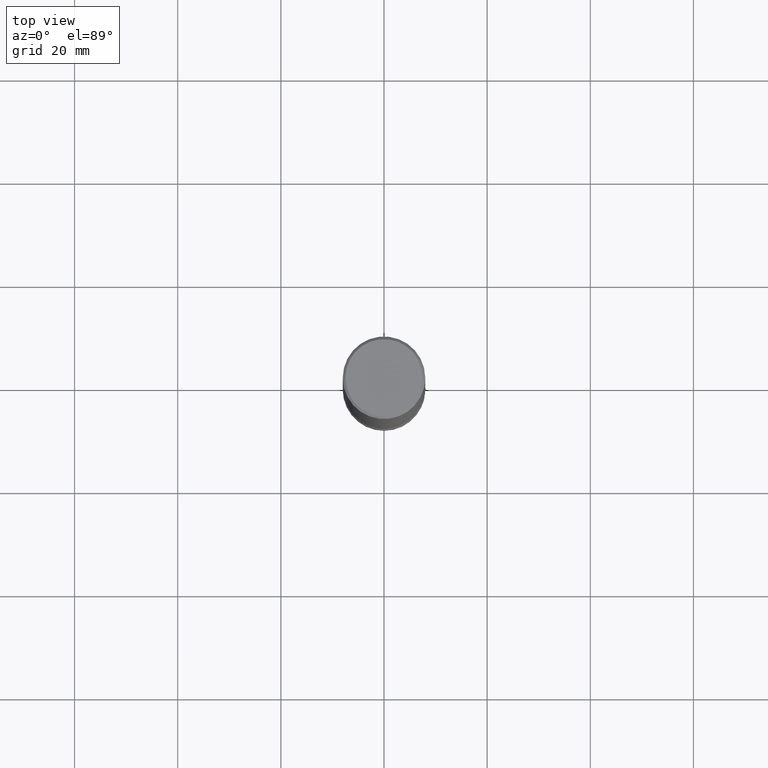
[diagram: clean part render]
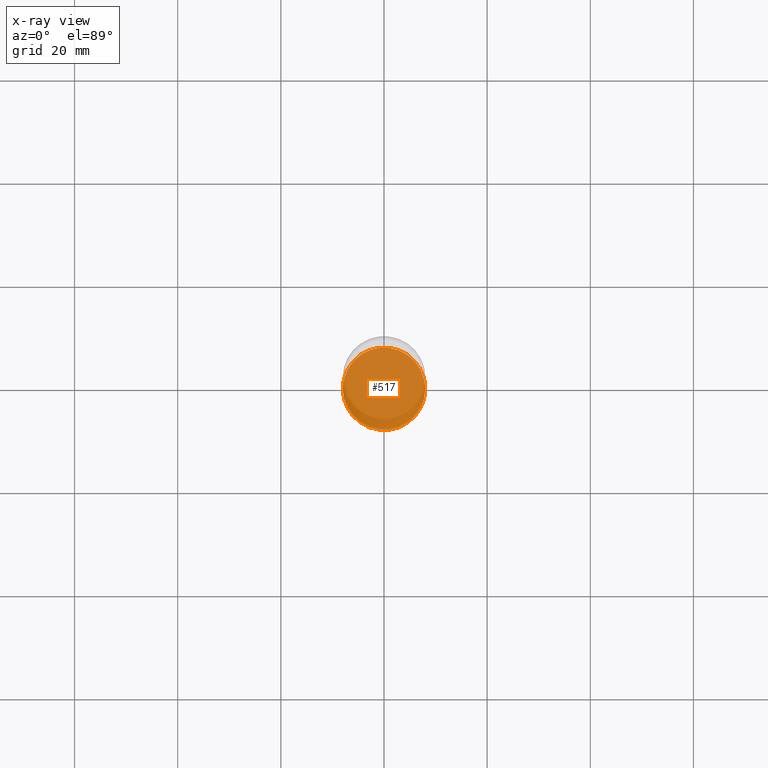
[diagram: x-ray — body ghosted, one internal face saturated and labeled with its STEP entity id]
A machine part, top view, then the same camera in x-ray: the body is ghosted and one INTERNAL B-rep face — a face not visible from any outside direction — is saturated and labeled: STEP entity #517.
In plain terms, the highlighted planar face has unit normal (0, -0, -1).
Its self-contained STEP definition (entity closure, byte-faithful):
#11 = DIRECTION ( 'NONE',  ( 2.445468806185136597E-29, -3.491481338843145583E-15, -1.000000000000000000 ) ) ;
#26 = ORIENTED_EDGE ( 'NONE', *, *, #507, .T. ) ;
#31 = CIRCLE ( 'NONE', #222, 0.3144499999999991746 ) ;
#33 = ORIENTED_EDGE ( 'NONE', *, *, #414, .T. ) ;
#104 = CIRCLE ( 'NONE', #396, 0.3144499999999991746 ) ;
#138 = DIRECTION ( 'NONE',  ( -1.000000000000000000, 6.982962677686264344E-15, 0.000000000000000000 ) ) ;
#139 = AXIS2_PLACEMENT_3D ( 'NONE', #398, #276, #319 ) ;
#163 = CARTESIAN_POINT ( 'NONE',  ( 0.3144499999999991746, -1.924149724620079113E-14, -4.881899999999999906 ) ) ;
#169 = VERTEX_POINT ( 'NONE', #163 ) ;
#191 = EDGE_LOOP ( 'NONE', ( #26, #33 ) ) ;
#222 = AXIS2_PLACEMENT_3D ( 'NONE', #228, #11, #402 ) ;
#228 = CARTESIAN_POINT ( 'NONE',  ( 1.193853416491521798E-28, -1.704506274809835102E-14, -4.881899999999999906 ) ) ;
#267 = FACE_OUTER_BOUND ( 'NONE', #191, .T. ) ;
#273 = CARTESIAN_POINT ( 'NONE',  ( -0.3144499999999991746, -1.480881294892509457E-14, -4.881899999999999906 ) ) ;
#276 = DIRECTION ( 'NONE',  ( 2.438088387897960049E-29, -3.491481338843145188E-15, -1.000000000000000000 ) ) ;
#319 = DIRECTION ( 'NONE',  ( -1.000000000000000000, 6.982962677686265922E-15, -4.876176775795935793E-29 ) ) ;
#396 = AXIS2_PLACEMENT_3D ( 'NONE', #477, #487, #138 ) ;
#398 = CARTESIAN_POINT ( 'NONE',  ( 2.195792613998559671E-15, 0.3144499999999820772, -4.881900000000000794 ) ) ;
#402 = DIRECTION ( 'NONE',  ( -1.000000000000000000, 6.982962677686264344E-15, 0.000000000000000000 ) ) ;
#414 = EDGE_CURVE ( 'NONE', #458, #169, #104, .T. ) ;
#458 = VERTEX_POINT ( 'NONE', #273 ) ;
#477 = CARTESIAN_POINT ( 'NONE',  ( 1.193853416491521798E-28, -1.704506274809835102E-14, -4.881899999999999906 ) ) ;
#487 = DIRECTION ( 'NONE',  ( 2.445468806185136597E-29, -3.491481338843145583E-15, -1.000000000000000000 ) ) ;
#507 = EDGE_CURVE ( 'NONE', #169, #458, #31, .T. ) ;
#517 = ADVANCED_FACE ( 'NONE', ( #267 ), #533, .T. ) ;
#533 = PLANE ( 'NONE',  #139 ) ;